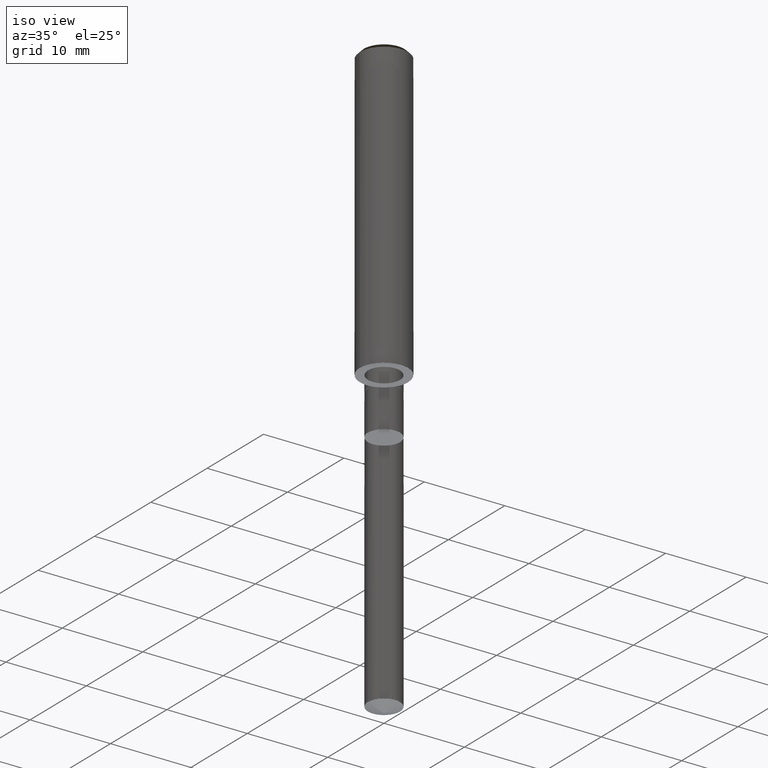
[diagram: clean part render]
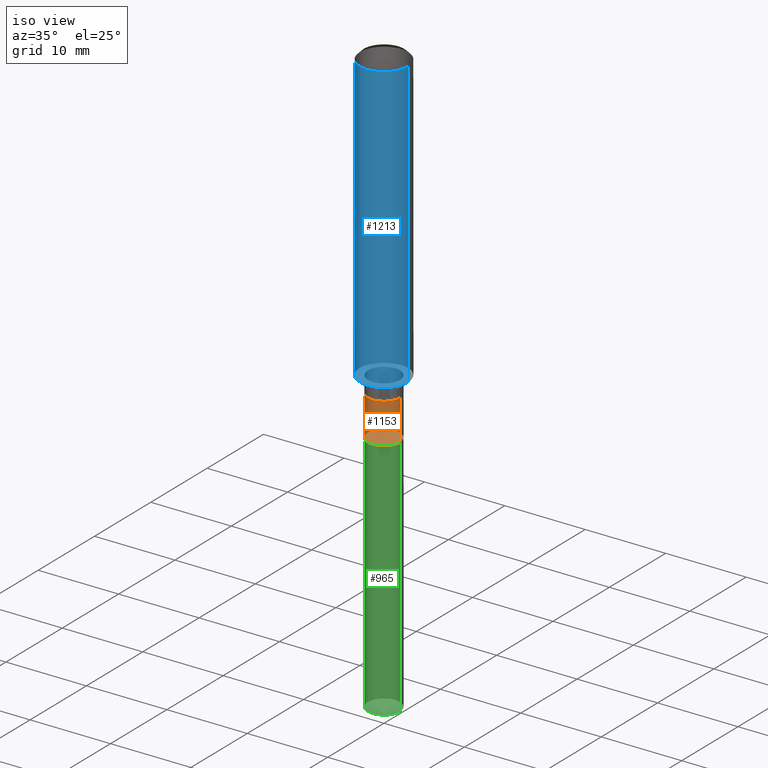
[diagram: same view with three faces highlighted in distinct colors, each labeled with its STEP entity id]
A machine part, iso view with three faces highlighted in distinct colors.
Their STEP definitions:

[orange] entity #1153 — the highlighted face is a freeform B-spline surface patch.
#820=CARTESIAN_POINT('',(2.0,0.0,-7.0));
#824=CARTESIAN_POINT('',(-2.0,0.0,-7.0));
#829=CARTESIAN_POINT('',(-2.0,-2.0,-7.0));
#830=CARTESIAN_POINT('',(0.0,-2.0,-7.0));
#831=CARTESIAN_POINT('',(2.0,-2.0,-7.0));
#832=CARTESIAN_POINT('',(2.0,0.0,-2.0));
#836=CARTESIAN_POINT('',(-2.0,0.0,-2.0));
#858=CARTESIAN_POINT('',(-2.0,-2.0,-2.0));
#859=CARTESIAN_POINT('',(0.0,-2.0,-2.0));
#860=CARTESIAN_POINT('',(2.0,-2.0,-2.0));
#1134=(
BOUNDED_SURFACE()
B_SPLINE_SURFACE(1,2,(
(#824,#829,#830,#831,#820),
(#836,#858,#859,#860,#832)
), .UNSPECIFIED.,.F.,.F.,.F.)
B_SPLINE_SURFACE_WITH_KNOTS((2,2),(3,2,3),(
0.0,1.0),(
0.0,0.5,1.0), .UNSPECIFIED.)
GEOMETRIC_REPRESENTATION_ITEM()
RATIONAL_B_SPLINE_SURFACE(((1.0,0.707106781187,1.0,0.707106781187,1.0),
(1.0,0.707106781187,1.0,0.707106781187,1.0)
))
REPRESENTATION_ITEM('')
SURFACE()
);
#1135=(
BOUNDED_CURVE()
B_SPLINE_CURVE(2,(#820,#831,#830,#829,#824),.UNSPECIFIED.,.F.,.F.)
B_SPLINE_CURVE_WITH_KNOTS((3,2,3),
(0.0,0.5,1.0),.UNSPECIFIED.)
CURVE()
GEOMETRIC_REPRESENTATION_ITEM()
RATIONAL_B_SPLINE_CURVE((1.0,0.707106781187,1.0,0.707106781187,1.0))
REPRESENTATION_ITEM('')
);
#1136=(
BOUNDED_CURVE()
B_SPLINE_CURVE(1,(#824,#836),.UNSPECIFIED.,.F.,.F.)
B_SPLINE_CURVE_WITH_KNOTS((2,2),
(0.0,1.0),.UNSPECIFIED.)
CURVE()
GEOMETRIC_REPRESENTATION_ITEM()
RATIONAL_B_SPLINE_CURVE((1.0,1.0))
REPRESENTATION_ITEM('')
);
#1137=(
BOUNDED_CURVE()
B_SPLINE_CURVE(2,(#836,#858,#859,#860,#832),.UNSPECIFIED.,.F.,.F.)
B_SPLINE_CURVE_WITH_KNOTS((3,2,3),
(0.0,0.5,1.0),.UNSPECIFIED.)
CURVE()
GEOMETRIC_REPRESENTATION_ITEM()
RATIONAL_B_SPLINE_CURVE((1.0,0.707106781187,1.0,0.707106781187,1.0))
REPRESENTATION_ITEM('')
);
#1138=(
BOUNDED_CURVE()
B_SPLINE_CURVE(1,(#832,#820),.UNSPECIFIED.,.F.,.F.)
B_SPLINE_CURVE_WITH_KNOTS((2,2),
(0.0,1.0),.UNSPECIFIED.)
CURVE()
GEOMETRIC_REPRESENTATION_ITEM()
RATIONAL_B_SPLINE_CURVE((1.0,1.0))
REPRESENTATION_ITEM('')
);
#1139=VERTEX_POINT('',#820);
#1140=VERTEX_POINT('',#824);
#1141=VERTEX_POINT('',#832);
#1142=VERTEX_POINT('',#836);
#1143=EDGE_CURVE('',#1139,#1140,#1135,.T.);
#1144=EDGE_CURVE('',#1140,#1142,#1136,.T.);
#1145=EDGE_CURVE('',#1142,#1141,#1137,.T.);
#1146=EDGE_CURVE('',#1141,#1139,#1138,.T.);
#1147=ORIENTED_EDGE('',*,*,#1143,.T.);
#1148=ORIENTED_EDGE('',*,*,#1144,.T.);
#1149=ORIENTED_EDGE('',*,*,#1145,.T.);
#1150=ORIENTED_EDGE('',*,*,#1146,.T.);
#1151=EDGE_LOOP('',(#1147,#1148,#1149,#1150));
#1152=FACE_OUTER_BOUND('',#1151,.T.);
#1153=ADVANCED_FACE('',(#1152),#1134,.T.);

[blue] entity #1213 — the highlighted face is a freeform B-spline surface patch.
#842=CARTESIAN_POINT('',(3.0,0.0,0.0));
#846=CARTESIAN_POINT('',(-3.0,0.0,0.0));
#847=CARTESIAN_POINT('',(3.0,0.0,35.5));
#851=CARTESIAN_POINT('',(-3.0,0.0,35.5));
#864=CARTESIAN_POINT('',(-3.0,-3.0,0.0));
#865=CARTESIAN_POINT('',(0.0,-3.0,0.0));
#866=CARTESIAN_POINT('',(3.0,-3.0,0.0));
#867=CARTESIAN_POINT('',(-3.0,-3.0,35.5));
#868=CARTESIAN_POINT('',(0.0,-3.0,35.5));
#869=CARTESIAN_POINT('',(3.0,-3.0,35.5));
#1194=(
BOUNDED_SURFACE()
B_SPLINE_SURFACE(1,2,(
(#846,#864,#865,#866,#842),
(#851,#867,#868,#869,#847)
), .UNSPECIFIED.,.F.,.F.,.F.)
B_SPLINE_SURFACE_WITH_KNOTS((2,2),(3,2,3),(
0.0,1.0),(
0.0,0.5,1.0), .UNSPECIFIED.)
GEOMETRIC_REPRESENTATION_ITEM()
RATIONAL_B_SPLINE_SURFACE(((1.0,0.707106781187,1.0,0.707106781187,1.0),
(1.0,0.707106781187,1.0,0.707106781187,1.0)
))
REPRESENTATION_ITEM('')
SURFACE()
);
#1195=(
BOUNDED_CURVE()
B_SPLINE_CURVE(2,(#842,#866,#865,#864,#846),.UNSPECIFIED.,.F.,.F.)
B_SPLINE_CURVE_WITH_KNOTS((3,2,3),
(0.0,0.5,1.0),.UNSPECIFIED.)
CURVE()
GEOMETRIC_REPRESENTATION_ITEM()
RATIONAL_B_SPLINE_CURVE((1.0,0.707106781187,1.0,0.707106781187,1.0))
REPRESENTATION_ITEM('')
);
#1196=(
BOUNDED_CURVE()
B_SPLINE_CURVE(1,(#846,#851),.UNSPECIFIED.,.F.,.F.)
B_SPLINE_CURVE_WITH_KNOTS((2,2),
(0.0,1.0),.UNSPECIFIED.)
CURVE()
GEOMETRIC_REPRESENTATION_ITEM()
RATIONAL_B_SPLINE_CURVE((1.0,1.0))
REPRESENTATION_ITEM('')
);
#1197=(
BOUNDED_CURVE()
B_SPLINE_CURVE(2,(#851,#867,#868,#869,#847),.UNSPECIFIED.,.F.,.F.)
B_SPLINE_CURVE_WITH_KNOTS((3,2,3),
(0.0,0.5,1.0),.UNSPECIFIED.)
CURVE()
GEOMETRIC_REPRESENTATION_ITEM()
RATIONAL_B_SPLINE_CURVE((1.0,0.707106781187,1.0,0.707106781187,1.0))
REPRESENTATION_ITEM('')
);
#1198=(
BOUNDED_CURVE()
B_SPLINE_CURVE(1,(#847,#842),.UNSPECIFIED.,.F.,.F.)
B_SPLINE_CURVE_WITH_KNOTS((2,2),
(0.0,1.0),.UNSPECIFIED.)
CURVE()
GEOMETRIC_REPRESENTATION_ITEM()
RATIONAL_B_SPLINE_CURVE((1.0,1.0))
REPRESENTATION_ITEM('')
);
#1199=VERTEX_POINT('',#842);
#1200=VERTEX_POINT('',#846);
#1201=VERTEX_POINT('',#847);
#1202=VERTEX_POINT('',#851);
#1203=EDGE_CURVE('',#1199,#1200,#1195,.T.);
#1204=EDGE_CURVE('',#1200,#1202,#1196,.T.);
#1205=EDGE_CURVE('',#1202,#1201,#1197,.T.);
#1206=EDGE_CURVE('',#1201,#1199,#1198,.T.);
#1207=ORIENTED_EDGE('',*,*,#1203,.T.);
#1208=ORIENTED_EDGE('',*,*,#1204,.T.);
#1209=ORIENTED_EDGE('',*,*,#1205,.T.);
#1210=ORIENTED_EDGE('',*,*,#1206,.T.);
#1211=EDGE_LOOP('',(#1207,#1208,#1209,#1210));
#1212=FACE_OUTER_BOUND('',#1211,.T.);
#1213=ADVANCED_FACE('',(#1212),#1194,.T.);

[green] entity #965 — the highlighted face is a freeform B-spline surface patch.
#815=CARTESIAN_POINT('',(2.0,0.0,-37.272059531468));
#819=CARTESIAN_POINT('',(-2.0,0.0,-37.272059531468));
#820=CARTESIAN_POINT('',(2.0,0.0,-7.0));
#824=CARTESIAN_POINT('',(-2.0,0.0,-7.0));
#826=CARTESIAN_POINT('',(-2.0,-2.0,-37.272059531468));
#827=CARTESIAN_POINT('',(0.0,-2.0,-37.272059531468));
#828=CARTESIAN_POINT('',(2.0,-2.0,-37.272059531468));
#829=CARTESIAN_POINT('',(-2.0,-2.0,-7.0));
#830=CARTESIAN_POINT('',(0.0,-2.0,-7.0));
#831=CARTESIAN_POINT('',(2.0,-2.0,-7.0));
#946=(
BOUNDED_SURFACE()
B_SPLINE_SURFACE(1,2,(
(#819,#826,#827,#828,#815),
(#824,#829,#830,#831,#820)
), .UNSPECIFIED.,.F.,.F.,.F.)
B_SPLINE_SURFACE_WITH_KNOTS((2,2),(3,2,3),(
0.0,1.0),(
0.0,0.5,1.0), .UNSPECIFIED.)
GEOMETRIC_REPRESENTATION_ITEM()
RATIONAL_B_SPLINE_SURFACE(((1.0,0.707106781187,1.0,0.707106781187,1.0),
(1.0,0.707106781187,1.0,0.707106781187,1.0)
))
REPRESENTATION_ITEM('')
SURFACE()
);
#947=(
BOUNDED_CURVE()
B_SPLINE_CURVE(2,(#815,#828,#827,#826,#819),.UNSPECIFIED.,.F.,.F.)
B_SPLINE_CURVE_WITH_KNOTS((3,2,3),
(0.0,0.5,1.0),.UNSPECIFIED.)
CURVE()
GEOMETRIC_REPRESENTATION_ITEM()
RATIONAL_B_SPLINE_CURVE((1.0,0.707106781187,1.0,0.707106781187,1.0))
REPRESENTATION_ITEM('')
);
#948=(
BOUNDED_CURVE()
B_SPLINE_CURVE(1,(#819,#824),.UNSPECIFIED.,.F.,.F.)
B_SPLINE_CURVE_WITH_KNOTS((2,2),
(0.0,1.0),.UNSPECIFIED.)
CURVE()
GEOMETRIC_REPRESENTATION_ITEM()
RATIONAL_B_SPLINE_CURVE((1.0,1.0))
REPRESENTATION_ITEM('')
);
#949=(
BOUNDED_CURVE()
B_SPLINE_CURVE(2,(#824,#829,#830,#831,#820),.UNSPECIFIED.,.F.,.F.)
B_SPLINE_CURVE_WITH_KNOTS((3,2,3),
(0.0,0.5,1.0),.UNSPECIFIED.)
CURVE()
GEOMETRIC_REPRESENTATION_ITEM()
RATIONAL_B_SPLINE_CURVE((1.0,0.707106781187,1.0,0.707106781187,1.0))
REPRESENTATION_ITEM('')
);
#950=(
BOUNDED_CURVE()
B_SPLINE_CURVE(1,(#820,#815),.UNSPECIFIED.,.F.,.F.)
B_SPLINE_CURVE_WITH_KNOTS((2,2),
(0.0,1.0),.UNSPECIFIED.)
CURVE()
GEOMETRIC_REPRESENTATION_ITEM()
RATIONAL_B_SPLINE_CURVE((1.0,1.0))
REPRESENTATION_ITEM('')
);
#951=VERTEX_POINT('',#815);
#952=VERTEX_POINT('',#819);
#953=VERTEX_POINT('',#820);
#954=VERTEX_POINT('',#824);
#955=EDGE_CURVE('',#951,#952,#947,.T.);
#956=EDGE_CURVE('',#952,#954,#948,.T.);
#957=EDGE_CURVE('',#954,#953,#949,.T.);
#958=EDGE_CURVE('',#953,#951,#950,.T.);
#959=ORIENTED_EDGE('',*,*,#955,.T.);
#960=ORIENTED_EDGE('',*,*,#956,.T.);
#961=ORIENTED_EDGE('',*,*,#957,.T.);
#962=ORIENTED_EDGE('',*,*,#958,.T.);
#963=EDGE_LOOP('',(#959,#960,#961,#962));
#964=FACE_OUTER_BOUND('',#963,.T.);
#965=ADVANCED_FACE('',(#964),#946,.T.);